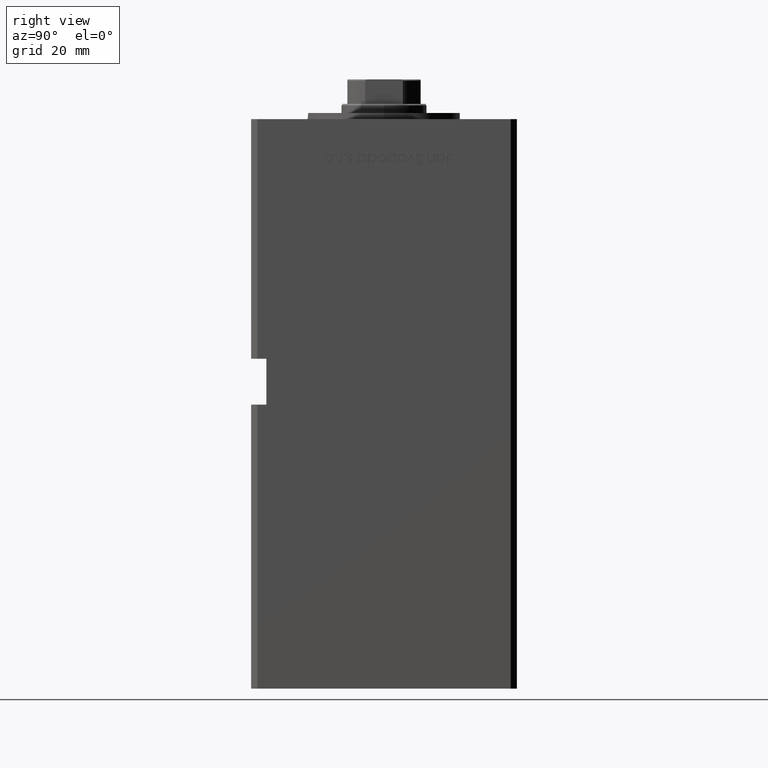
[diagram: clean part render]
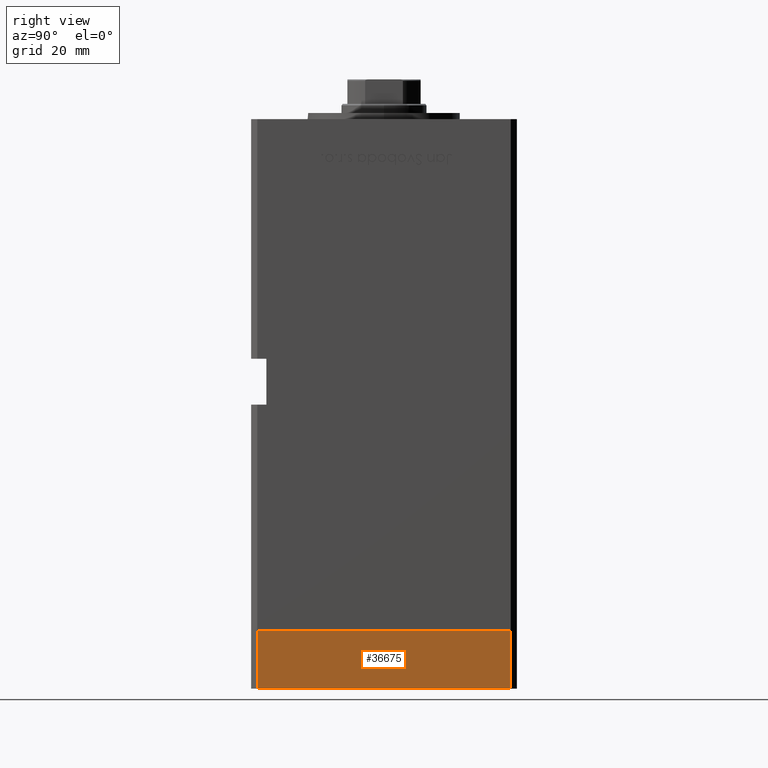
[diagram: same view with one face highlighted and labeled with its STEP entity id]
A machine part, right view. The second image highlights one B-rep face of the part: STEP entity #36675.
In plain terms, the highlighted planar face has unit normal (1, 0, 0).
Its self-contained STEP definition (entity closure, byte-faithful):
#2032 = PLANE ( 'NONE',  #29844 ) ;
#4014 = LINE ( 'NONE', #40856, #49921 ) ;
#5538 = DIRECTION ( 'NONE',  ( 8.360113137237628665E-17, -1.000000000000000000, 0.000000000000000000 ) ) ;
#5842 = VERTEX_POINT ( 'NONE', #49363 ) ;
#6834 = CARTESIAN_POINT ( 'NONE',  ( -50.00000000000000711, 41.49999999999995026, -19.00000000000000000 ) ) ;
#6874 = ORIENTED_EDGE ( 'NONE', *, *, #22376, .F. ) ;
#7192 = CARTESIAN_POINT ( 'NONE',  ( -50.00000000000000711, 41.49999999999995026, 0.000000000000000000 ) ) ;
#7214 = CARTESIAN_POINT ( 'NONE',  ( -50.00000000000000711, 41.49999999999995026, -19.00000000000000000 ) ) ;
#7702 = CARTESIAN_POINT ( 'NONE',  ( -50.00000000000000711, 41.49999999999995026, -19.00000000000000000 ) ) ;
#8857 = ORIENTED_EDGE ( 'NONE', *, *, #29365, .T. ) ;
#11268 = EDGE_LOOP ( 'NONE', ( #19824, #6874, #8857, #20987 ) ) ;
#15186 = DIRECTION ( 'NONE',  ( -1.000000000000000000, -8.360113137237628665E-17, 0.000000000000000000 ) ) ;
#15799 = DIRECTION ( 'NONE',  ( 0.000000000000000000, 0.000000000000000000, 1.000000000000000000 ) ) ;
#16281 = VERTEX_POINT ( 'NONE', #32809 ) ;
#17920 = CARTESIAN_POINT ( 'NONE',  ( -50.00000000000000711, 41.49999999999995026, 0.000000000000000000 ) ) ;
#18701 = LINE ( 'NONE', #17920, #40329 ) ;
#19804 = EDGE_CURVE ( 'NONE', #5842, #16281, #4014, .T. ) ;
#19824 = ORIENTED_EDGE ( 'NONE', *, *, #39361, .F. ) ;
#20987 = ORIENTED_EDGE ( 'NONE', *, *, #19804, .T. ) ;
#22376 = EDGE_CURVE ( 'NONE', #52670, #26680, #44534, .T. ) ;
#23436 = VECTOR ( 'NONE', #49541, 1000.000000000000000 ) ;
#26680 = VERTEX_POINT ( 'NONE', #7192 ) ;
#29365 = EDGE_CURVE ( 'NONE', #52670, #5842, #30200, .T. ) ;
#29844 = AXIS2_PLACEMENT_3D ( 'NONE', #6834, #15186, #39644 ) ;
#30200 = LINE ( 'NONE', #33168, #23436 ) ;
#32809 = CARTESIAN_POINT ( 'NONE',  ( -50.00000000000000000, -41.50000000000000000, 0.000000000000000000 ) ) ;
#33168 = CARTESIAN_POINT ( 'NONE',  ( -50.00000000000000711, 41.49999999999995026, -19.00000000000000000 ) ) ;
#36675 = ADVANCED_FACE ( 'NONE', ( #44198 ), #2032, .T. ) ;
#37997 = VECTOR ( 'NONE', #15799, 1000.000000000000000 ) ;
#39361 = EDGE_CURVE ( 'NONE', #26680, #16281, #18701, .T. ) ;
#39644 = DIRECTION ( 'NONE',  ( 8.360113137237628665E-17, -1.000000000000000000, 0.000000000000000000 ) ) ;
#40329 = VECTOR ( 'NONE', #5538, 1000.000000000000000 ) ;
#40856 = CARTESIAN_POINT ( 'NONE',  ( -50.00000000000000000, -41.50000000000000000, -19.00000000000000000 ) ) ;
#44198 = FACE_OUTER_BOUND ( 'NONE', #11268, .T. ) ;
#44534 = LINE ( 'NONE', #7702, #37997 ) ;
#49363 = CARTESIAN_POINT ( 'NONE',  ( -50.00000000000000000, -41.50000000000000000, -19.00000000000000000 ) ) ;
#49541 = DIRECTION ( 'NONE',  ( 8.360113137237628665E-17, -1.000000000000000000, 0.000000000000000000 ) ) ;
#49921 = VECTOR ( 'NONE', #52672, 1000.000000000000000 ) ;
#52670 = VERTEX_POINT ( 'NONE', #7214 ) ;
#52672 = DIRECTION ( 'NONE',  ( 0.000000000000000000, 0.000000000000000000, 1.000000000000000000 ) ) ;